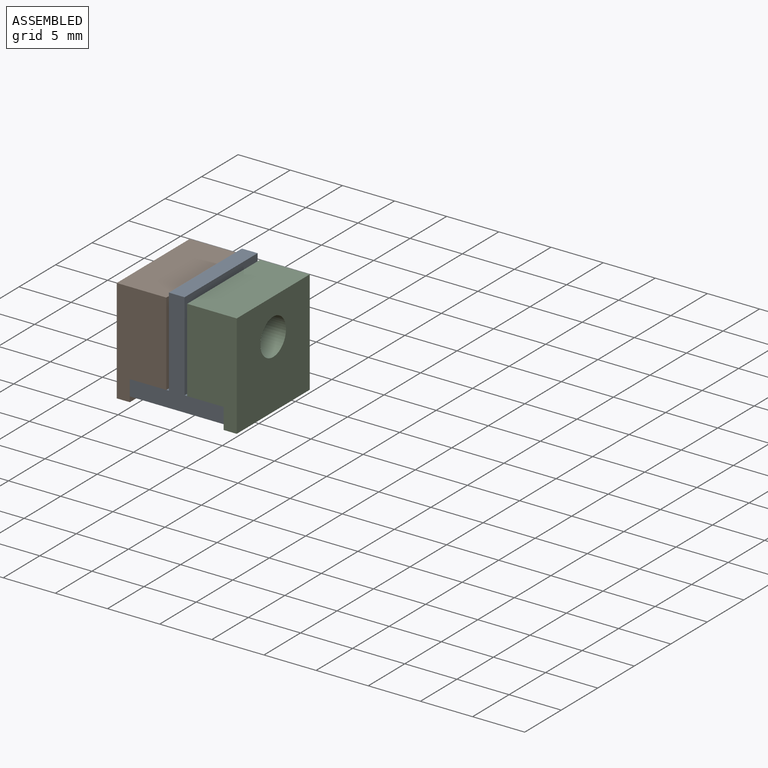
[diagram: assembled view]
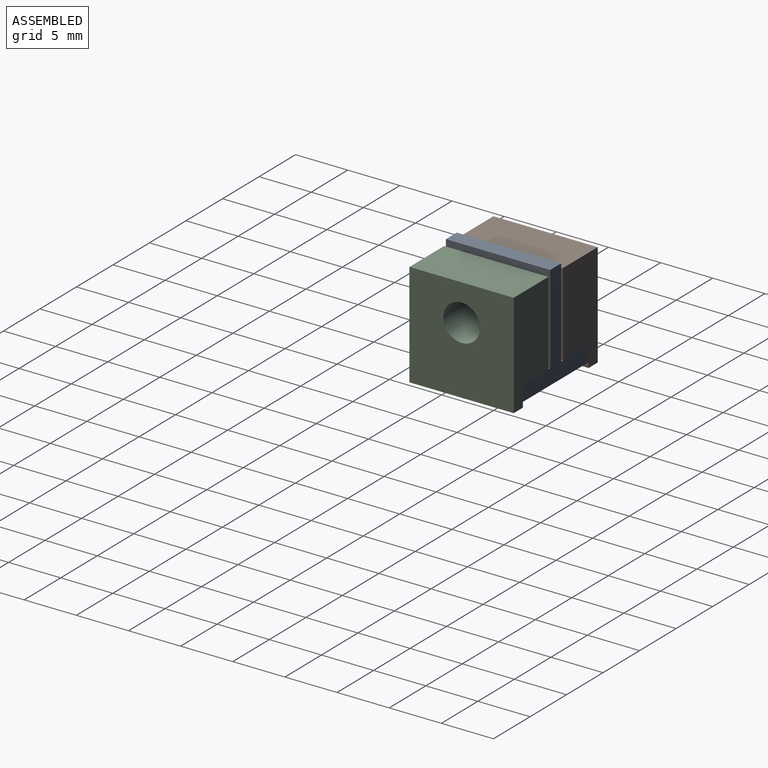
[diagram: assembled view, second angle]
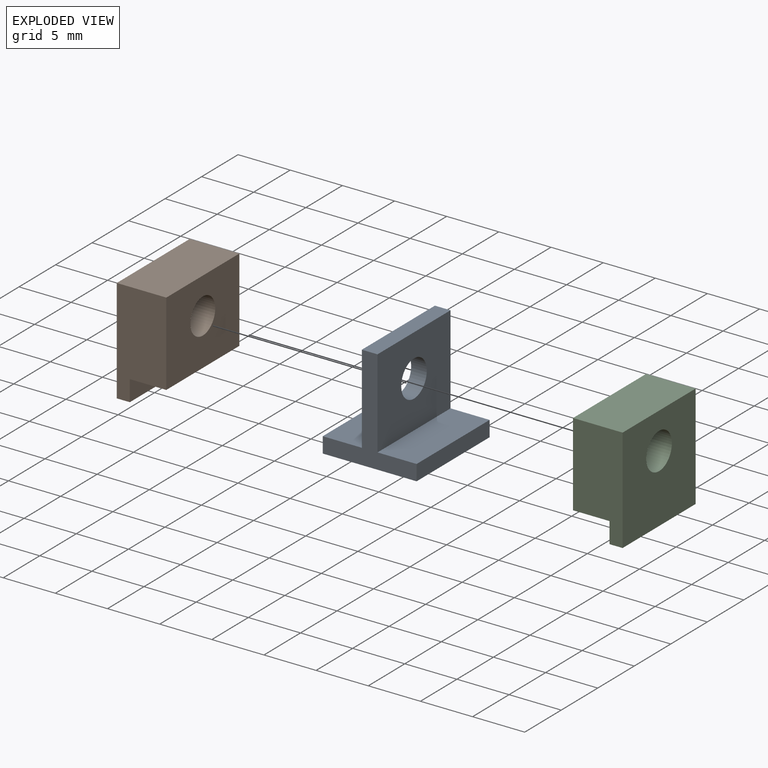
[diagram: exploded view]
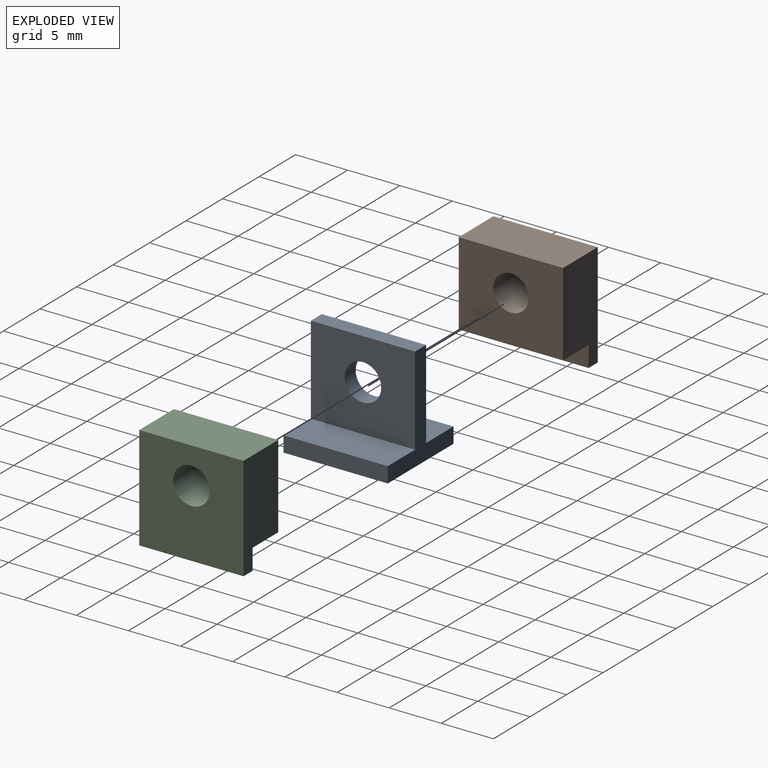
[diagram: exploded view, second angle]
ASSEMBLY  parts=3 mates=2
PART A: 11 faces, bbox 9x10x10 mm
  f0: plane 10x3.75mm, normal (0,0,1), area 37.5mm2, adj f1,f7,f8,f9
  f1: plane 10x8.5mm, normal (1,0,0), area 75.4mm2, adj f0,f2,f8,f9,f10
  f2: plane 10x1.5mm, normal (0,0,1), area 15mm2, adj f1,f3,f8,f9
  f3: plane 10x8.5mm, normal (-1,0,0), area 75.4mm2, adj f2,f4,f8,f9,f10
  f4: plane 10x3.75mm, normal (0,0,1), area 37.5mm2, adj f3,f5,f8,f9
  f5: plane 10x1.5mm, normal (-1,0,0), area 15mm2, adj f4,f6,f8,f9
  f6: plane 10x9mm, normal (0,0,-1), area 90mm2, adj f5,f7,f8,f9
  f7: plane 10x1.5mm, normal (1,0,0), area 15mm2, adj f0,f6,f8,f9
  f8: plane 10x9mm, normal (0,-1,0), area 26.3mm2, adj f0,f1,f2,f3,f4,f5,f6,f7
  f9: plane 10x9mm, normal (0,1,0), area 26.3mm2, adj f0,f1,f2,f3,f4,f5,f6,f7
  f10: cylinder r=1.75mm len=3.5mm, axis (-1,0,0), area 16.5mm2, adj f1,f3
PART B: 9 faces, bbox 4.8x10x10 mm
  f0: plane 10x1.25mm, normal (0,0,-1), area 12.5mm2, adj f1,f2,f5,f7
  f1: plane 10x4.75mm, normal (0,-1,0), area 40.5mm2, adj f0,f3,f4,f5,f6,f7
  f2: plane 10x4.75mm, normal (0,1,0), area 40.5mm2, adj f0,f3,f4,f5,f6,f7
  f3: plane 10x4.75mm, normal (0,0,1), area 47.5mm2, adj f1,f2,f4,f5
  f4: plane 10x8mm, normal (-1,0,0), area 70.9mm2, adj f1,f2,f3,f6,f8
  f5: plane 10x10mm, normal (1,0,0), area 90.9mm2, adj f0,f1,f2,f3,f8
  f6: plane 10x3.5mm, normal (0,0,-1), area 35mm2, adj f1,f2,f4,f7
  f7: plane 10x2mm, normal (-1,0,0), area 20mm2, adj f0,f1,f2,f6
  f8: cylinder r=1.7mm len=4.75mm, axis (1,0,0), area 50.7mm2, adj f4,f5
PART C: 9 faces, bbox 4.8x10x10 mm
  f0: plane 10x1.25mm, normal (0,0,-1), area 12.5mm2, adj f1,f2,f5,f7
  f1: plane 10x4.75mm, normal (0,-1,0), area 40.5mm2, adj f0,f3,f4,f5,f6,f7
  f2: plane 10x4.75mm, normal (0,1,0), area 40.5mm2, adj f0,f3,f4,f5,f6,f7
  f3: plane 10x4.75mm, normal (0,0,1), area 47.5mm2, adj f1,f2,f4,f5
  f4: plane 10x8mm, normal (-1,0,0), area 70.4mm2, adj f1,f2,f3,f6,f8
  f5: plane 10x10mm, normal (1,0,0), area 90.4mm2, adj f0,f1,f2,f3,f8
  f6: plane 10x3.5mm, normal (0,0,-1), area 35mm2, adj f1,f2,f4,f7
  f7: plane 10x2mm, normal (-1,0,0), area 20mm2, adj f0,f1,f2,f6
  f8: cylinder r=1.75mm len=4.75mm, axis (1,0,0), area 52.2mm2, adj f4,f5
PLACE A t=(-20.73,-3.06,-2.46)mm
PLACE B rot(axis=(0,0,1),180deg) t=(-24.1,-13.06,0.54)mm
PLACE C t=(-17.35,-3.06,0.54)mm
MATE fastened A.f7 <-> C.f7  axis (1,0,0) through (-16.23,-8.06,-2.46)mm
MATE fastened A.f5 <-> B.f7  axis (-1,0,0) through (-25.23,-8.06,-2.46)mm
